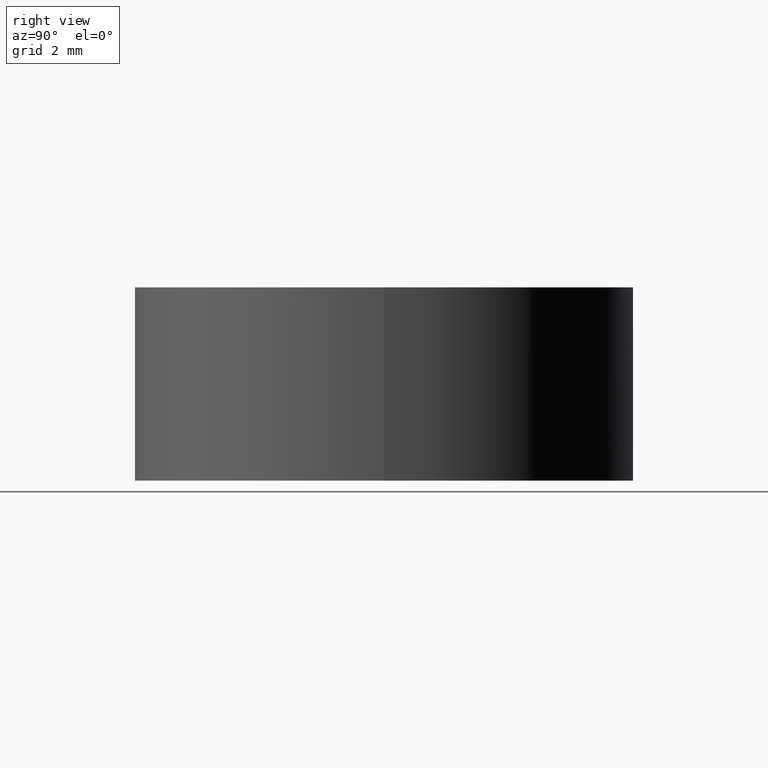
[diagram: clean part render]
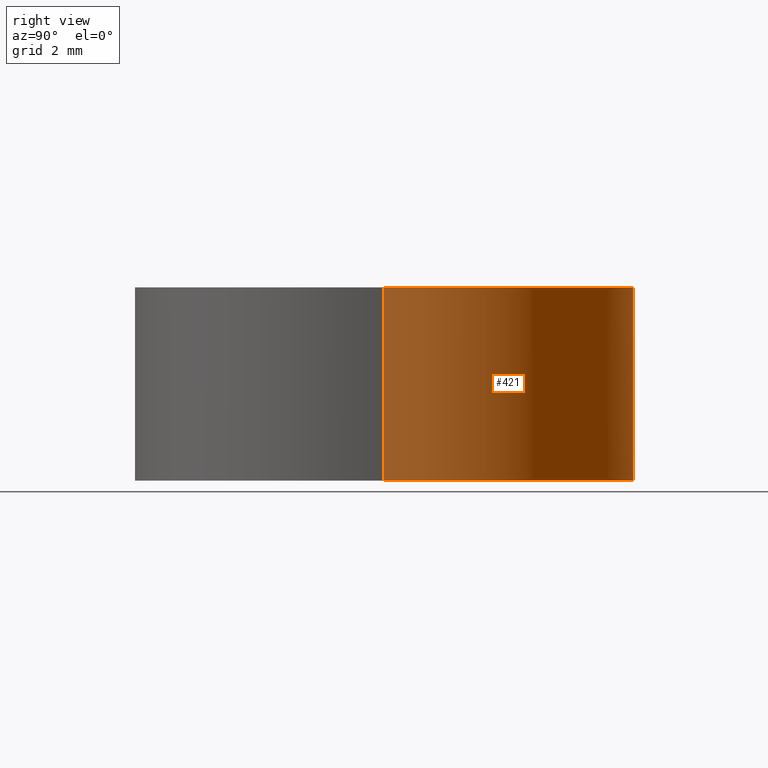
[diagram: same view with one face highlighted and labeled with its STEP entity id]
A machine part, right view. The second image highlights one B-rep face of the part: STEP entity #421.
In plain terms, the highlighted cylindrical surface (partial cylindrical patch) has radius 6.458 mm, axis along (-0, -0, -1).
Its self-contained STEP definition (entity closure, byte-faithful):
#19 = DIRECTION ( 'NONE',  ( -0.0000000000000000000, -0.0000000000000000000, -1.000000000000000000 ) ) ;
#111 = DIRECTION ( 'NONE',  ( -1.000000000000000000, 0.0000000000000000000, 0.0000000000000000000 ) ) ;
#115 = FACE_OUTER_BOUND ( 'NONE', #389, .T. ) ;
#157 = CARTESIAN_POINT ( 'NONE',  ( 0.0000000000000000000, 0.0000000000000000000, 3.881000000000001560 ) ) ;
#172 = CARTESIAN_POINT ( 'NONE',  ( 0.0000000000000000000, 0.0000000000000000000, -1.118999999999997996 ) ) ;
#179 = EDGE_CURVE ( 'NONE', #293, #450, #422, .T. ) ;
#187 = CIRCLE ( 'NONE', #352, 6.458015859815825266 ) ;
#188 = CARTESIAN_POINT ( 'NONE',  ( -6.458015859815825266, 0.0000000000000000000, -1.695065087290339889 ) ) ;
#212 = EDGE_CURVE ( 'NONE', #440, #322, #640, .T. ) ;
#256 = CARTESIAN_POINT ( 'NONE',  ( 6.458015859815827042, 7.908788451566294723E-16, -1.118999999999997996 ) ) ;
#260 = AXIS2_PLACEMENT_3D ( 'NONE', #314, #603, #354 ) ;
#293 = VERTEX_POINT ( 'NONE', #465 ) ;
#309 = CIRCLE ( 'NONE', #340, 6.458015859815826154 ) ;
#314 = CARTESIAN_POINT ( 'NONE',  ( 0.0000000000000000000, 0.0000000000000000000, -1.695065087290339889 ) ) ;
#322 = VERTEX_POINT ( 'NONE', #364 ) ;
#323 = EDGE_CURVE ( 'NONE', #322, #450, #309, .T. ) ;
#340 = AXIS2_PLACEMENT_3D ( 'NONE', #172, #559, #111 ) ;
#352 = AXIS2_PLACEMENT_3D ( 'NONE', #157, #355, #555 ) ;
#354 = DIRECTION ( 'NONE',  ( -1.000000000000000000, 0.0000000000000000000, 0.0000000000000000000 ) ) ;
#355 = DIRECTION ( 'NONE',  ( -0.0000000000000000000, -0.0000000000000000000, -1.000000000000000000 ) ) ;
#364 = CARTESIAN_POINT ( 'NONE',  ( -6.458015859815826154, 0.0000000000000000000, -1.118999999999997996 ) ) ;
#383 = DIRECTION ( 'NONE',  ( -0.0000000000000000000, -0.0000000000000000000, -1.000000000000000000 ) ) ;
#389 = EDGE_LOOP ( 'NONE', ( #442, #604, #493, #513 ) ) ;
#392 = EDGE_CURVE ( 'NONE', #440, #293, #187, .T. ) ;
#403 = CYLINDRICAL_SURFACE ( 'NONE', #260, 6.458015859815825266 ) ;
#421 = ADVANCED_FACE ( 'NONE', ( #115 ), #403, .T. ) ;
#422 = LINE ( 'NONE', #638, #522 ) ;
#440 = VERTEX_POINT ( 'NONE', #499 ) ;
#442 = ORIENTED_EDGE ( 'NONE', *, *, #392, .T. ) ;
#450 = VERTEX_POINT ( 'NONE', #256 ) ;
#465 = CARTESIAN_POINT ( 'NONE',  ( 6.458015859815825266, 7.908788451566292751E-16, 3.881000000000001560 ) ) ;
#467 = VECTOR ( 'NONE', #383, 1000.000000000000000 ) ;
#493 = ORIENTED_EDGE ( 'NONE', *, *, #323, .F. ) ;
#499 = CARTESIAN_POINT ( 'NONE',  ( -6.458015859815825266, 0.0000000000000000000, 3.881000000000001560 ) ) ;
#513 = ORIENTED_EDGE ( 'NONE', *, *, #212, .F. ) ;
#522 = VECTOR ( 'NONE', #19, 1000.000000000000000 ) ;
#555 = DIRECTION ( 'NONE',  ( -1.000000000000000000, 0.0000000000000000000, 0.0000000000000000000 ) ) ;
#559 = DIRECTION ( 'NONE',  ( -0.0000000000000000000, -0.0000000000000000000, -1.000000000000000000 ) ) ;
#603 = DIRECTION ( 'NONE',  ( -0.0000000000000000000, -0.0000000000000000000, -1.000000000000000000 ) ) ;
#604 = ORIENTED_EDGE ( 'NONE', *, *, #179, .T. ) ;
#638 = CARTESIAN_POINT ( 'NONE',  ( 6.458015859815825266, 7.908788451566292751E-16, -1.695065087290339889 ) ) ;
#640 = LINE ( 'NONE', #188, #467 ) ;